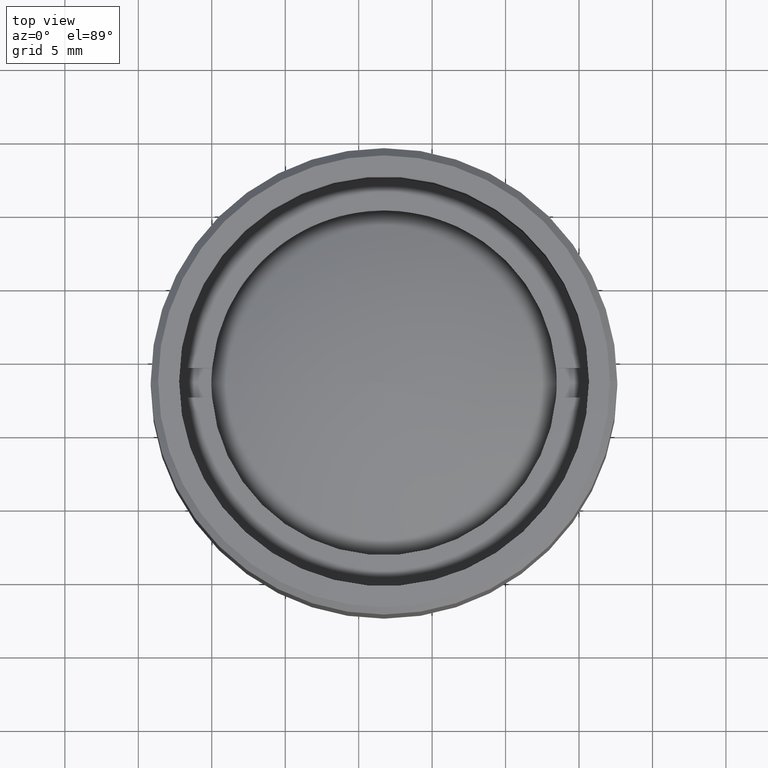
[diagram: clean part render]
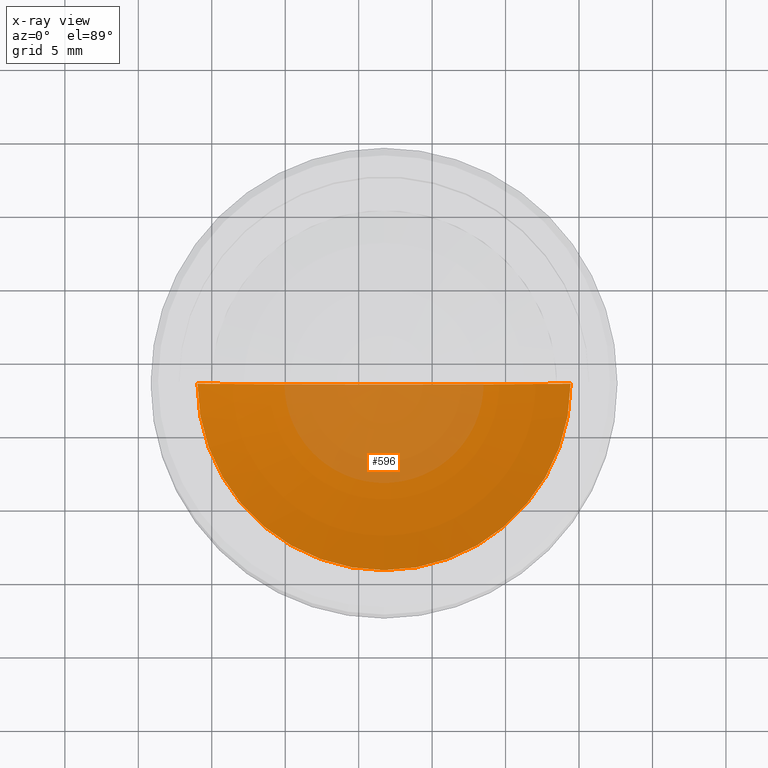
[diagram: x-ray — body ghosted, one internal face saturated and labeled with its STEP entity id]
A machine part, top view, then the same camera in x-ray: the body is ghosted and one INTERNAL B-rep face — a face not visible from any outside direction — is saturated and labeled: STEP entity #596.
In plain terms, the highlighted spherical surface has radius 25.9 mm.
Its self-contained STEP definition (entity closure, byte-faithful):
#10 = ORIENTED_EDGE ( 'NONE', *, *, #288, .F. ) ;
#46 = DIRECTION ( 'NONE',  ( 0.000000000000000000, -0.000000000000000000, 1.000000000000000000 ) ) ;
#93 = AXIS2_PLACEMENT_3D ( 'NONE', #1230, #46, #990 ) ;
#288 = EDGE_CURVE ( 'NONE', #883, #794, #1062, .T. ) ;
#316 = FACE_OUTER_BOUND ( 'NONE', #1022, .T. ) ;
#343 = DIRECTION ( 'NONE',  ( -1.000000000000000000, -1.224646799147351975E-16, 0.000000000000000000 ) ) ;
#433 = CARTESIAN_POINT ( 'NONE',  ( 12.69999999999999929, 1.555301434917139813E-15, -3.672549700908845249 ) ) ;
#478 = ORIENTED_EDGE ( 'NONE', *, *, #1680, .T. ) ;
#596 = ADVANCED_FACE ( 'NONE', ( #316 ), #707, .T. ) ;
#707 = SPHERICAL_SURFACE ( 'NONE', #93, 25.89999999999999858 ) ;
#794 = VERTEX_POINT ( 'NONE', #1297 ) ;
#883 = VERTEX_POINT ( 'NONE', #433 ) ;
#938 = DIRECTION ( 'NONE',  ( -1.000000000000000000, 0.000000000000000000, -6.829619984160658046E-17 ) ) ;
#983 = DIRECTION ( 'NONE',  ( -1.224646799147351975E-16, 1.000000000000000000, -6.427541925693679959E-33 ) ) ;
#990 = DIRECTION ( 'NONE',  ( -1.000000000000000000, 0.000000000000000000, 0.000000000000000000 ) ) ;
#1022 = EDGE_LOOP ( 'NONE', ( #10, #478 ) ) ;
#1043 = AXIS2_PLACEMENT_3D ( 'NONE', #1346, #1475, #938 ) ;
#1062 = CIRCLE ( 'NONE', #1555, 25.89999999999999858 ) ;
#1230 = CARTESIAN_POINT ( 'NONE',  ( 0.000000000000000000, 0.000000000000000000, 18.89999999999999858 ) ) ;
#1297 = CARTESIAN_POINT ( 'NONE',  ( -12.69999999999999929, 0.000000000000000000, -3.672549700908845249 ) ) ;
#1325 = CIRCLE ( 'NONE', #1043, 12.69999999999999929 ) ;
#1346 = CARTESIAN_POINT ( 'NONE',  ( 1.927532672540395099E-16, 0.000000000000000000, -3.672549700908845249 ) ) ;
#1475 = DIRECTION ( 'NONE',  ( 6.829619984160659279E-17, 0.000000000000000000, -1.000000000000000000 ) ) ;
#1555 = AXIS2_PLACEMENT_3D ( 'NONE', #1639, #983, #343 ) ;
#1639 = CARTESIAN_POINT ( 'NONE',  ( 0.000000000000000000, 0.000000000000000000, 18.89999999999999858 ) ) ;
#1680 = EDGE_CURVE ( 'NONE', #883, #794, #1325, .T. ) ;